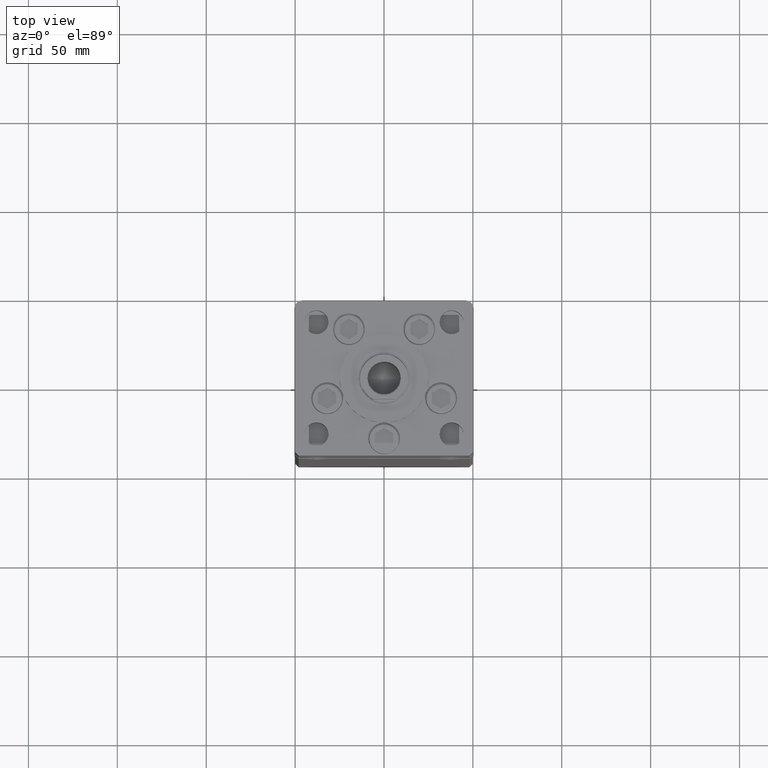
[diagram: clean part render]
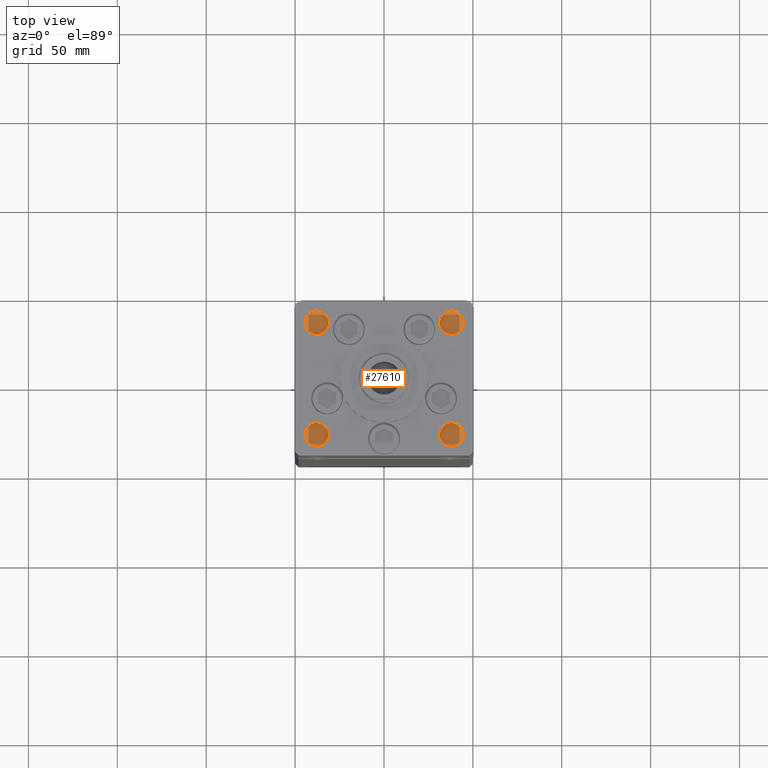
[diagram: same view with one face highlighted and labeled with its STEP entity id]
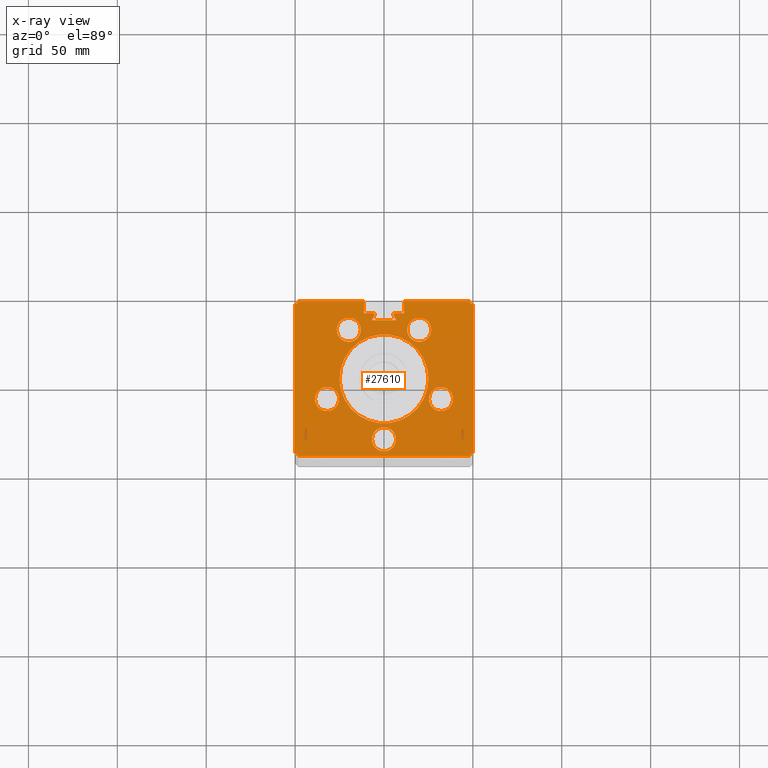
[diagram: x-ray of the same camera — body ghosted, the highlighted face saturated]
A machine part, top view. The second image highlights one B-rep face of the part: STEP entity #27610.
The next image is the same camera in x-ray: the body ghosted, the highlighted face saturated — about 0% of this face is hidden behind the body in this view.
In plain terms, the highlighted planar face has unit normal (0, 0, -1).
Its self-contained STEP definition (entity closure, byte-faithful):
#249 = FACE_BOUND ( 'NONE', #30417, .T. ) ;
#274 = CARTESIAN_POINT ( 'NONE',  ( 49.99999999999998579, -41.49999999999999289, 338.5000000000000000 ) ) ;
#301 = EDGE_CURVE ( 'NONE', #16092, #37693, #9199, .T. ) ;
#686 = VERTEX_POINT ( 'NONE', #38133 ) ;
#774 = DIRECTION ( 'NONE',  ( 0.000000000000000000, 0.000000000000000000, -1.000000000000000000 ) ) ;
#806 = EDGE_CURVE ( 'NONE', #14934, #25585, #36472, .T. ) ;
#831 = DIRECTION ( 'NONE',  ( -0.7071067811865487940, -0.7071067811865463515, 0.000000000000000000 ) ) ;
#842 = CARTESIAN_POINT ( 'NONE',  ( -19.44653440471351402, 11.22746187336663226, 338.5000000000000000 ) ) ;
#1046 = CARTESIAN_POINT ( 'NONE',  ( 0.000000000000000000, 0.000000000000000000, 338.5000000000000000 ) ) ;
#1163 = VERTEX_POINT ( 'NONE', #13509 ) ;
#1441 = ORIENTED_EDGE ( 'NONE', *, *, #301, .T. ) ;
#1903 = AXIS2_PLACEMENT_3D ( 'NONE', #31553, #44477, #7609 ) ;
#1906 = CIRCLE ( 'NONE', #14779, 0.9333333333339999260 ) ;
#1945 = CARTESIAN_POINT ( 'NONE',  ( 26.57068048781373903, 27.62500000000000000, 338.5000000000000000 ) ) ;
#2425 = VERTEX_POINT ( 'NONE', #37145 ) ;
#2578 = CARTESIAN_POINT ( 'NONE',  ( -32.05550741379015278, -11.33333333333334458, 338.5000000000000000 ) ) ;
#2744 = DIRECTION ( 'NONE',  ( 1.000000000000000000, 0.000000000000000000, 0.000000000000000000 ) ) ;
#3244 = EDGE_CURVE ( 'NONE', #45665, #2425, #27998, .T. ) ;
#3258 = VECTOR ( 'NONE', #48334, 1000.000000000000114 ) ;
#3396 = CARTESIAN_POINT ( 'NONE',  ( 0.000000000000000000, 0.000000000000000000, 338.5000000000000000 ) ) ;
#3453 = AXIS2_PLACEMENT_3D ( 'NONE', #10288, #26696, #19443 ) ;
#3525 = DIRECTION ( 'NONE',  ( 3.344045254895050973E-16, -1.000000000000000000, 0.000000000000000000 ) ) ;
#3640 = CIRCLE ( 'NONE', #1903, 6.749999999999999112 ) ;
#3907 = CARTESIAN_POINT ( 'NONE',  ( 11.24999999999999645, 37.00000000000000000, 338.5000000000000000 ) ) ;
#4026 = EDGE_LOOP ( 'NONE', ( #48817, #43955 ) ) ;
#4202 = CARTESIAN_POINT ( 'NONE',  ( 25.00000000000000000, 3.061616997868383043E-15, 338.5000000000000000 ) ) ;
#4565 = FACE_BOUND ( 'NONE', #4026, .T. ) ;
#4828 = PLANE ( 'NONE',  #19080 ) ;
#4993 = EDGE_LOOP ( 'NONE', ( #53265, #18719 ) ) ;
#5135 = VERTEX_POINT ( 'NONE', #17079 ) ;
#5151 = LINE ( 'NONE', #8660, #5290 ) ;
#5290 = VECTOR ( 'NONE', #33672, 1000.000000000000000 ) ;
#5382 = CARTESIAN_POINT ( 'NONE',  ( -11.24999999999999645, 0.000000000000000000, 338.5000000000000000 ) ) ;
#5396 = VERTEX_POINT ( 'NONE', #44747 ) ;
#5457 = VERTEX_POINT ( 'NONE', #49833 ) ;
#5572 = CARTESIAN_POINT ( 'NONE',  ( 6.876153656360465050, 32.99999999999986500, 338.5000000000000000 ) ) ;
#6509 = CARTESIAN_POINT ( 'NONE',  ( 25.30550741379015278, -11.33333333333334103, 338.5000000000000000 ) ) ;
#6865 = VECTOR ( 'NONE', #831, 1000.000000000000000 ) ;
#7071 = ORIENTED_EDGE ( 'NONE', *, *, #12977, .F. ) ;
#7177 = CARTESIAN_POINT ( 'NONE',  ( -11.24999999999999645, 37.00000000000000000, 338.5000000000000000 ) ) ;
#7448 = VERTEX_POINT ( 'NONE', #48994 ) ;
#7480 = EDGE_CURVE ( 'NONE', #7448, #25585, #8353, .T. ) ;
#7609 = DIRECTION ( 'NONE',  ( 1.000000000000000000, 0.000000000000000000, 0.000000000000000000 ) ) ;
#7973 = CARTESIAN_POINT ( 'NONE',  ( -50.00000000000001421, 41.49999999999999289, 338.5000000000000000 ) ) ;
#8353 = LINE ( 'NONE', #274, #20446 ) ;
#8447 = AXIS2_PLACEMENT_3D ( 'NONE', #32163, #39724, #19535 ) ;
#8635 = CIRCLE ( 'NONE', #38708, 25.00000000000000000 ) ;
#8660 = CARTESIAN_POINT ( 'NONE',  ( -11.24999999999999645, 43.50000000000000000, 338.5000000000000000 ) ) ;
#8724 = EDGE_CURVE ( 'NONE', #26478, #46243, #46250, .T. ) ;
#9198 = CARTESIAN_POINT ( 'NONE',  ( 32.05550741379015278, -11.33333333333334103, 338.5000000000000000 ) ) ;
#9199 = LINE ( 'NONE', #842, #30992 ) ;
#9242 = ORIENTED_EDGE ( 'NONE', *, *, #43493, .T. ) ;
#9331 = EDGE_CURVE ( 'NONE', #20983, #14459, #27331, .T. ) ;
#9375 = EDGE_CURVE ( 'NONE', #5396, #29085, #38523, .T. ) ;
#9472 = CARTESIAN_POINT ( 'NONE',  ( 19.82068048781374259, 27.62500000000000000, 338.5000000000000000 ) ) ;
#10199 = CARTESIAN_POINT ( 'NONE',  ( 50.00000000000001421, 41.49999999999999289, 338.5000000000000000 ) ) ;
#10202 = ORIENTED_EDGE ( 'NONE', *, *, #19631, .F. ) ;
#10254 = ORIENTED_EDGE ( 'NONE', *, *, #51500, .F. ) ;
#10282 = LINE ( 'NONE', #42863, #44751 ) ;
#10288 = CARTESIAN_POINT ( 'NONE',  ( -19.82068048781374259, 27.62499999999999645, 338.5000000000000000 ) ) ;
#10659 = DIRECTION ( 'NONE',  ( 1.000000000000000000, 0.000000000000000000, 0.000000000000000000 ) ) ;
#10762 = ORIENTED_EDGE ( 'NONE', *, *, #18156, .T. ) ;
#11081 = CARTESIAN_POINT ( 'NONE',  ( -6.183333333333996151, 36.06666666666599497, 338.5000000000000000 ) ) ;
#11401 = CIRCLE ( 'NONE', #31112, 6.749999999999999112 ) ;
#11522 = ORIENTED_EDGE ( 'NONE', *, *, #9375, .F. ) ;
#12176 = DIRECTION ( 'NONE',  ( 1.000000000000000000, 0.000000000000000000, 0.000000000000000000 ) ) ;
#12192 = DIRECTION ( 'NONE',  ( 0.000000000000000000, 0.000000000000000000, 1.000000000000000000 ) ) ;
#12263 = EDGE_CURVE ( 'NONE', #2425, #14934, #15229, .T. ) ;
#12281 = CARTESIAN_POINT ( 'NONE',  ( -11.24999999999999645, 43.50000000000000000, 338.5000000000000000 ) ) ;
#12782 = CARTESIAN_POINT ( 'NONE',  ( 2.081899558550500280E-15, -34.00000000000000000, 338.5000000000000000 ) ) ;
#12923 = DIRECTION ( 'NONE',  ( 0.000000000000000000, 1.000000000000000000, 0.000000000000000000 ) ) ;
#12977 = EDGE_CURVE ( 'NONE', #5135, #7448, #37677, .T. ) ;
#13348 = EDGE_CURVE ( 'NONE', #15019, #16225, #26480, .T. ) ;
#13509 = CARTESIAN_POINT ( 'NONE',  ( -5.249999999999995559, 36.06666666666599497, 338.5000000000000000 ) ) ;
#13547 = VERTEX_POINT ( 'NONE', #34895 ) ;
#13625 = ORIENTED_EDGE ( 'NONE', *, *, #27314, .F. ) ;
#13820 = ORIENTED_EDGE ( 'NONE', *, *, #12263, .T. ) ;
#14043 = DIRECTION ( 'NONE',  ( 1.000000000000000000, 0.000000000000000000, 0.000000000000000000 ) ) ;
#14459 = VERTEX_POINT ( 'NONE', #4202 ) ;
#14734 = CARTESIAN_POINT ( 'NONE',  ( 38.80550741379015278, -11.33333333333334103, 338.5000000000000000 ) ) ;
#14779 = AXIS2_PLACEMENT_3D ( 'NONE', #27697, #44133, #27963 ) ;
#14934 = VERTEX_POINT ( 'NONE', #38431 ) ;
#15019 = VERTEX_POINT ( 'NONE', #31130 ) ;
#15121 = DIRECTION ( 'NONE',  ( 0.000000000000000000, 0.000000000000000000, -1.000000000000000000 ) ) ;
#15229 = LINE ( 'NONE', #23839, #3258 ) ;
#15329 = AXIS2_PLACEMENT_3D ( 'NONE', #12782, #32961, #16288 ) ;
#15361 = DIRECTION ( 'NONE',  ( 0.000000000000000000, 0.000000000000000000, 1.000000000000000000 ) ) ;
#15598 = EDGE_CURVE ( 'NONE', #13547, #33071, #23208, .T. ) ;
#15794 = DIRECTION ( 'NONE',  ( 1.000000000000000000, 0.000000000000000000, 0.000000000000000000 ) ) ;
#16092 = VERTEX_POINT ( 'NONE', #52911 ) ;
#16225 = VERTEX_POINT ( 'NONE', #42663 ) ;
#16288 = DIRECTION ( 'NONE',  ( 1.000000000000000000, 0.000000000000000000, 0.000000000000000000 ) ) ;
#16481 = EDGE_CURVE ( 'NONE', #32214, #5135, #43055, .T. ) ;
#16610 = ORIENTED_EDGE ( 'NONE', *, *, #40503, .F. ) ;
#16710 = DIRECTION ( 'NONE',  ( -0.7071067811865474617, -0.7071067811865474617, 0.000000000000000000 ) ) ;
#16943 = FACE_BOUND ( 'NONE', #37708, .T. ) ;
#17079 = CARTESIAN_POINT ( 'NONE',  ( 50.00000000000001421, 41.49999999999999289, 338.5000000000000000 ) ) ;
#17559 = DIRECTION ( 'NONE',  ( 0.000000000000000000, 0.000000000000000000, 1.000000000000000000 ) ) ;
#18014 = VECTOR ( 'NONE', #36009, 999.9999999999998863 ) ;
#18066 = DIRECTION ( 'NONE',  ( 0.4999999999999988898, 0.8660254037844393737, 0.000000000000000000 ) ) ;
#18156 = EDGE_CURVE ( 'NONE', #5457, #45665, #49556, .T. ) ;
#18368 = CARTESIAN_POINT ( 'NONE',  ( -38.80550741379015278, -11.33333333333334458, 338.5000000000000000 ) ) ;
#18480 = DIRECTION ( 'NONE',  ( 1.000000000000000000, 0.000000000000000000, 0.000000000000000000 ) ) ;
#18569 = CARTESIAN_POINT ( 'NONE',  ( 19.82068048781374259, 27.62500000000000000, 338.5000000000000000 ) ) ;
#18719 = ORIENTED_EDGE ( 'NONE', *, *, #29618, .F. ) ;
#18741 = DIRECTION ( 'NONE',  ( 0.000000000000000000, 0.000000000000000000, -1.000000000000000000 ) ) ;
#19080 = AXIS2_PLACEMENT_3D ( 'NONE', #1046, #774, #38197 ) ;
#19443 = DIRECTION ( 'NONE',  ( 1.000000000000000000, 0.000000000000000000, 0.000000000000000000 ) ) ;
#19459 = LINE ( 'NONE', #47713, #47511 ) ;
#19535 = DIRECTION ( 'NONE',  ( 1.000000000000000000, 0.000000000000000000, 0.000000000000000000 ) ) ;
#19631 = EDGE_CURVE ( 'NONE', #14459, #20983, #8635, .T. ) ;
#19642 = CARTESIAN_POINT ( 'NONE',  ( -26.57068048781373903, 27.62499999999999645, 338.5000000000000000 ) ) ;
#19669 = DIRECTION ( 'NONE',  ( 1.000000000000000000, 0.000000000000000000, 0.000000000000000000 ) ) ;
#19679 = CARTESIAN_POINT ( 'NONE',  ( -50.00000000000001421, 41.49999999999999289, 338.5000000000000000 ) ) ;
#19746 = VECTOR ( 'NONE', #39102, 1000.000000000000000 ) ;
#20025 = AXIS2_PLACEMENT_3D ( 'NONE', #9198, #20524, #12176 ) ;
#20446 = VECTOR ( 'NONE', #16710, 1000.000000000000114 ) ;
#20505 = VERTEX_POINT ( 'NONE', #12281 ) ;
#20506 = ORIENTED_EDGE ( 'NONE', *, *, #9331, .F. ) ;
#20524 = DIRECTION ( 'NONE',  ( 0.000000000000000000, 0.000000000000000000, 1.000000000000000000 ) ) ;
#20950 = EDGE_CURVE ( 'NONE', #26121, #16092, #10282, .T. ) ;
#20983 = VERTEX_POINT ( 'NONE', #30982 ) ;
#21582 = VECTOR ( 'NONE', #32953, 1000.000000000000000 ) ;
#21630 = ORIENTED_EDGE ( 'NONE', *, *, #53009, .F. ) ;
#22394 = ORIENTED_EDGE ( 'NONE', *, *, #46138, .F. ) ;
#22460 = ORIENTED_EDGE ( 'NONE', *, *, #25579, .F. ) ;
#22573 = VECTOR ( 'NONE', #18480, 1000.000000000000000 ) ;
#22924 = DIRECTION ( 'NONE',  ( -0.000000000000000000, -1.000000000000000000, 0.000000000000000000 ) ) ;
#23208 = LINE ( 'NONE', #31535, #19746 ) ;
#23441 = CARTESIAN_POINT ( 'NONE',  ( -32.05550741379015278, -11.33333333333334458, 338.5000000000000000 ) ) ;
#23598 = DIRECTION ( 'NONE',  ( -0.000000000000000000, 0.000000000000000000, 1.000000000000000000 ) ) ;
#23650 = LINE ( 'NONE', #43557, #18014 ) ;
#23839 = CARTESIAN_POINT ( 'NONE',  ( -49.99999999999998579, -41.49999999999999289, 338.5000000000000000 ) ) ;
#24161 = VERTEX_POINT ( 'NONE', #3907 ) ;
#24369 = CARTESIAN_POINT ( 'NONE',  ( -47.99999999999998579, -43.50000000000000000, 338.5000000000000000 ) ) ;
#24527 = EDGE_CURVE ( 'NONE', #50818, #25729, #3640, .T. ) ;
#24752 = CARTESIAN_POINT ( 'NONE',  ( 32.05550741379015278, -11.33333333333334103, 338.5000000000000000 ) ) ;
#25579 = EDGE_CURVE ( 'NONE', #686, #33475, #50092, .T. ) ;
#25585 = VERTEX_POINT ( 'NONE', #36070 ) ;
#25729 = VERTEX_POINT ( 'NONE', #37940 ) ;
#25749 = LINE ( 'NONE', #35883, #22573 ) ;
#26121 = VERTEX_POINT ( 'NONE', #5572 ) ;
#26216 = EDGE_CURVE ( 'NONE', #5457, #20505, #25749, .T. ) ;
#26478 = VERTEX_POINT ( 'NONE', #14734 ) ;
#26480 = CIRCLE ( 'NONE', #41991, 0.9333333333339999260 ) ;
#26603 = DIRECTION ( 'NONE',  ( -3.344045254895050973E-16, -1.000000000000000000, 0.000000000000000000 ) ) ;
#26696 = DIRECTION ( 'NONE',  ( 0.000000000000000000, 0.000000000000000000, 1.000000000000000000 ) ) ;
#27064 = DIRECTION ( 'NONE',  ( 0.000000000000000000, 0.000000000000000000, 1.000000000000000000 ) ) ;
#27314 = EDGE_CURVE ( 'NONE', #49259, #32214, #5151, .T. ) ;
#27331 = CIRCLE ( 'NONE', #8447, 25.00000000000000000 ) ;
#27535 = CIRCLE ( 'NONE', #48175, 6.749999999999999112 ) ;
#27610 = ADVANCED_FACE ( 'NONE', ( #16943, #50303, #249, #37659, #4565, #41705, #34131 ), #4828, .F. ) ;
#27697 = CARTESIAN_POINT ( 'NONE',  ( -6.183333333333996151, 36.06666666666599497, 338.5000000000000000 ) ) ;
#27963 = DIRECTION ( 'NONE',  ( 1.000000000000000000, 0.000000000000000000, 0.000000000000000000 ) ) ;
#27996 = CARTESIAN_POINT ( 'NONE',  ( -5.375042956467944499, 35.59999999999899245, 338.5000000000000000 ) ) ;
#27998 = LINE ( 'NONE', #19679, #50837 ) ;
#28591 = DIRECTION ( 'NONE',  ( 1.000000000000000000, 0.000000000000000000, 0.000000000000000000 ) ) ;
#29085 = VERTEX_POINT ( 'NONE', #46774 ) ;
#29291 = CARTESIAN_POINT ( 'NONE',  ( 13.07068048781374081, 27.62500000000000000, 338.5000000000000000 ) ) ;
#29307 = ORIENTED_EDGE ( 'NONE', *, *, #20950, .T. ) ;
#29444 = AXIS2_PLACEMENT_3D ( 'NONE', #23441, #15361, #19669 ) ;
#29618 = EDGE_CURVE ( 'NONE', #47499, #45982, #11401, .T. ) ;
#29890 = CARTESIAN_POINT ( 'NONE',  ( -48.00000000000000711, 43.50000000000000000, 338.5000000000000000 ) ) ;
#30003 = ORIENTED_EDGE ( 'NONE', *, *, #13348, .F. ) ;
#30031 = AXIS2_PLACEMENT_3D ( 'NONE', #36674, #12192, #28591 ) ;
#30402 = DIRECTION ( 'NONE',  ( 0.000000000000000000, 0.000000000000000000, 1.000000000000000000 ) ) ;
#30417 = EDGE_LOOP ( 'NONE', ( #49921, #21630 ) ) ;
#30808 = ORIENTED_EDGE ( 'NONE', *, *, #15598, .T. ) ;
#30982 = CARTESIAN_POINT ( 'NONE',  ( -25.00000000000000000, 0.000000000000000000, 338.5000000000000000 ) ) ;
#30992 = VECTOR ( 'NONE', #18066, 999.9999999999998863 ) ;
#31112 = AXIS2_PLACEMENT_3D ( 'NONE', #18569, #30402, #34716 ) ;
#31130 = CARTESIAN_POINT ( 'NONE',  ( 5.375042956467944499, 35.59999999999899245, 338.5000000000000000 ) ) ;
#31535 = CARTESIAN_POINT ( 'NONE',  ( 0.000000000000000000, 37.00000000000000000, 338.5000000000000000 ) ) ;
#31553 = CARTESIAN_POINT ( 'NONE',  ( -19.82068048781374259, 27.62499999999999645, 338.5000000000000000 ) ) ;
#31675 = VECTOR ( 'NONE', #26603, 1000.000000000000000 ) ;
#31946 = ORIENTED_EDGE ( 'NONE', *, *, #26216, .F. ) ;
#32149 = ORIENTED_EDGE ( 'NONE', *, *, #16481, .F. ) ;
#32163 = CARTESIAN_POINT ( 'NONE',  ( 0.000000000000000000, 0.000000000000000000, 338.5000000000000000 ) ) ;
#32214 = VERTEX_POINT ( 'NONE', #39138 ) ;
#32671 = AXIS2_PLACEMENT_3D ( 'NONE', #11081, #15121, #2744 ) ;
#32821 = DIRECTION ( 'NONE',  ( 1.000000000000000000, 0.000000000000000000, 0.000000000000000000 ) ) ;
#32953 = DIRECTION ( 'NONE',  ( 1.000000000000000000, 0.000000000000000000, 0.000000000000000000 ) ) ;
#32961 = DIRECTION ( 'NONE',  ( 0.000000000000000000, 0.000000000000000000, 1.000000000000000000 ) ) ;
#33014 = EDGE_LOOP ( 'NONE', ( #16610, #11522 ) ) ;
#33071 = VERTEX_POINT ( 'NONE', #7177 ) ;
#33317 = ORIENTED_EDGE ( 'NONE', *, *, #40103, .F. ) ;
#33475 = VERTEX_POINT ( 'NONE', #18368 ) ;
#33672 = DIRECTION ( 'NONE',  ( 1.000000000000000000, 0.000000000000000000, 0.000000000000000000 ) ) ;
#34131 = FACE_BOUND ( 'NONE', #36642, .T. ) ;
#34563 = ORIENTED_EDGE ( 'NONE', *, *, #806, .T. ) ;
#34716 = DIRECTION ( 'NONE',  ( 1.000000000000000000, 0.000000000000000000, 0.000000000000000000 ) ) ;
#34895 = CARTESIAN_POINT ( 'NONE',  ( -6.183333333333996151, 37.00000000000000000, 338.5000000000000000 ) ) ;
#35862 = EDGE_LOOP ( 'NONE', ( #30808, #47793, #31946, #10762, #50277, #13820, #34563, #46075, #7071, #32149, #13625, #40219, #48438, #30003, #9242, #29307, #1441, #10254, #22394 ) ) ;
#35883 = CARTESIAN_POINT ( 'NONE',  ( -11.24999999999999645, 43.50000000000000000, 338.5000000000000000 ) ) ;
#36009 = DIRECTION ( 'NONE',  ( 0.4999999999999988898, -0.8660254037844393737, 0.000000000000000000 ) ) ;
#36064 = CIRCLE ( 'NONE', #42953, 6.749999999999999112 ) ;
#36070 = CARTESIAN_POINT ( 'NONE',  ( 47.99999999999998579, -43.50000000000000000, 338.5000000000000000 ) ) ;
#36472 = LINE ( 'NONE', #24369, #21582 ) ;
#36642 = EDGE_LOOP ( 'NONE', ( #20506, #10202 ) ) ;
#36674 = CARTESIAN_POINT ( 'NONE',  ( 2.081899558550500280E-15, -34.00000000000000000, 338.5000000000000000 ) ) ;
#37145 = CARTESIAN_POINT ( 'NONE',  ( -49.99999999999998579, -41.49999999999999289, 338.5000000000000000 ) ) ;
#37659 = FACE_BOUND ( 'NONE', #4993, .T. ) ;
#37677 = LINE ( 'NONE', #10199, #31675 ) ;
#37693 = VERTEX_POINT ( 'NONE', #27996 ) ;
#37708 = EDGE_LOOP ( 'NONE', ( #22460, #33317 ) ) ;
#37808 = EDGE_CURVE ( 'NONE', #33071, #20505, #50063, .T. ) ;
#37840 = VECTOR ( 'NONE', #22924, 1000.000000000000000 ) ;
#37940 = CARTESIAN_POINT ( 'NONE',  ( -13.07068048781374259, 27.62499999999999645, 338.5000000000000000 ) ) ;
#38133 = CARTESIAN_POINT ( 'NONE',  ( -25.30550741379015278, -11.33333333333334458, 338.5000000000000000 ) ) ;
#38191 = DIRECTION ( 'NONE',  ( 0.000000000000000000, 0.000000000000000000, 1.000000000000000000 ) ) ;
#38197 = DIRECTION ( 'NONE',  ( -1.000000000000000000, 0.000000000000000000, -0.000000000000000000 ) ) ;
#38431 = CARTESIAN_POINT ( 'NONE',  ( -47.99999999999998579, -43.50000000000000000, 338.5000000000000000 ) ) ;
#38523 = CIRCLE ( 'NONE', #15329, 6.749999999999999112 ) ;
#38708 = AXIS2_PLACEMENT_3D ( 'NONE', #3396, #23598, #15794 ) ;
#39102 = DIRECTION ( 'NONE',  ( -1.000000000000000000, 0.000000000000000000, 0.000000000000000000 ) ) ;
#39138 = CARTESIAN_POINT ( 'NONE',  ( 48.00000000000000711, 43.50000000000000000, 338.5000000000000000 ) ) ;
#39641 = DIRECTION ( 'NONE',  ( -1.000000000000000000, 0.000000000000000000, 0.000000000000000000 ) ) ;
#39724 = DIRECTION ( 'NONE',  ( -0.000000000000000000, 0.000000000000000000, 1.000000000000000000 ) ) ;
#39732 = DIRECTION ( 'NONE',  ( 1.000000000000000000, 0.000000000000000000, 0.000000000000000000 ) ) ;
#39764 = CIRCLE ( 'NONE', #20025, 6.749999999999999112 ) ;
#39822 = CARTESIAN_POINT ( 'NONE',  ( 48.00000000000000711, 43.50000000000000000, 338.5000000000000000 ) ) ;
#39884 = LINE ( 'NONE', #44189, #37840 ) ;
#40103 = EDGE_CURVE ( 'NONE', #33475, #686, #36064, .T. ) ;
#40219 = ORIENTED_EDGE ( 'NONE', *, *, #46249, .T. ) ;
#40503 = EDGE_CURVE ( 'NONE', #29085, #5396, #42070, .T. ) ;
#41112 = AXIS2_PLACEMENT_3D ( 'NONE', #24752, #38191, #32821 ) ;
#41705 = FACE_OUTER_BOUND ( 'NONE', #35862, .T. ) ;
#41991 = AXIS2_PLACEMENT_3D ( 'NONE', #50262, #18741, #39732 ) ;
#42070 = CIRCLE ( 'NONE', #30031, 6.749999999999999112 ) ;
#42147 = CIRCLE ( 'NONE', #3453, 6.749999999999999112 ) ;
#42663 = CARTESIAN_POINT ( 'NONE',  ( 6.183333333333996151, 37.00000000000000000, 338.5000000000000000 ) ) ;
#42863 = CARTESIAN_POINT ( 'NONE',  ( 0.000000000000000000, 32.99999999999986500, 338.5000000000000000 ) ) ;
#42953 = AXIS2_PLACEMENT_3D ( 'NONE', #2578, #27064, #10659 ) ;
#43055 = LINE ( 'NONE', #39822, #52385 ) ;
#43194 = EDGE_CURVE ( 'NONE', #45982, #47499, #27535, .T. ) ;
#43493 = EDGE_CURVE ( 'NONE', #15019, #26121, #23650, .T. ) ;
#43557 = CARTESIAN_POINT ( 'NONE',  ( 19.44653440471351402, 11.22746187336663226, 338.5000000000000000 ) ) ;
#43652 = DIRECTION ( 'NONE',  ( -1.000000000000000000, 0.000000000000000000, 0.000000000000000000 ) ) ;
#43955 = ORIENTED_EDGE ( 'NONE', *, *, #24527, .F. ) ;
#44133 = DIRECTION ( 'NONE',  ( 0.000000000000000000, 0.000000000000000000, -1.000000000000000000 ) ) ;
#44189 = CARTESIAN_POINT ( 'NONE',  ( 11.24999999999999645, 0.000000000000000000, 338.5000000000000000 ) ) ;
#44287 = VECTOR ( 'NONE', #12923, 1000.000000000000000 ) ;
#44477 = DIRECTION ( 'NONE',  ( 0.000000000000000000, 0.000000000000000000, 1.000000000000000000 ) ) ;
#44747 = CARTESIAN_POINT ( 'NONE',  ( -6.749999999999997335, -34.00000000000000000, 338.5000000000000000 ) ) ;
#44751 = VECTOR ( 'NONE', #43652, 1000.000000000000000 ) ;
#45665 = VERTEX_POINT ( 'NONE', #7973 ) ;
#45982 = VERTEX_POINT ( 'NONE', #1945 ) ;
#46075 = ORIENTED_EDGE ( 'NONE', *, *, #7480, .F. ) ;
#46138 = EDGE_CURVE ( 'NONE', #13547, #1163, #50738, .T. ) ;
#46243 = VERTEX_POINT ( 'NONE', #6509 ) ;
#46249 = EDGE_CURVE ( 'NONE', #49259, #24161, #39884, .T. ) ;
#46250 = CIRCLE ( 'NONE', #41112, 6.749999999999999112 ) ;
#46685 = CARTESIAN_POINT ( 'NONE',  ( 11.24999999999998934, 43.50000000000000000, 338.5000000000000000 ) ) ;
#46774 = CARTESIAN_POINT ( 'NONE',  ( 6.750000000000000888, -34.00000000000000000, 338.5000000000000000 ) ) ;
#46981 = EDGE_CURVE ( 'NONE', #25729, #50818, #42147, .T. ) ;
#47072 = DIRECTION ( 'NONE',  ( 0.7071067811865487940, -0.7071067811865463515, 0.000000000000000000 ) ) ;
#47499 = VERTEX_POINT ( 'NONE', #29291 ) ;
#47511 = VECTOR ( 'NONE', #39641, 1000.000000000000000 ) ;
#47713 = CARTESIAN_POINT ( 'NONE',  ( 0.000000000000000000, 37.00000000000000000, 338.5000000000000000 ) ) ;
#47793 = ORIENTED_EDGE ( 'NONE', *, *, #37808, .T. ) ;
#48175 = AXIS2_PLACEMENT_3D ( 'NONE', #9472, #17559, #14043 ) ;
#48334 = DIRECTION ( 'NONE',  ( 0.7071067811865474617, -0.7071067811865474617, 0.000000000000000000 ) ) ;
#48438 = ORIENTED_EDGE ( 'NONE', *, *, #52842, .T. ) ;
#48817 = ORIENTED_EDGE ( 'NONE', *, *, #46981, .F. ) ;
#48994 = CARTESIAN_POINT ( 'NONE',  ( 49.99999999999998579, -41.49999999999999289, 338.5000000000000000 ) ) ;
#49259 = VERTEX_POINT ( 'NONE', #46685 ) ;
#49556 = LINE ( 'NONE', #29890, #6865 ) ;
#49833 = CARTESIAN_POINT ( 'NONE',  ( -48.00000000000000711, 43.50000000000000000, 338.5000000000000000 ) ) ;
#49921 = ORIENTED_EDGE ( 'NONE', *, *, #8724, .F. ) ;
#50063 = LINE ( 'NONE', #5382, #44287 ) ;
#50092 = CIRCLE ( 'NONE', #29444, 6.749999999999999112 ) ;
#50262 = CARTESIAN_POINT ( 'NONE',  ( 6.183333333333996151, 36.06666666666599497, 338.5000000000000000 ) ) ;
#50277 = ORIENTED_EDGE ( 'NONE', *, *, #3244, .T. ) ;
#50303 = FACE_BOUND ( 'NONE', #33014, .T. ) ;
#50738 = CIRCLE ( 'NONE', #32671, 0.9333333333339999260 ) ;
#50818 = VERTEX_POINT ( 'NONE', #19642 ) ;
#50837 = VECTOR ( 'NONE', #3525, 1000.000000000000000 ) ;
#51500 = EDGE_CURVE ( 'NONE', #1163, #37693, #1906, .T. ) ;
#52385 = VECTOR ( 'NONE', #47072, 1000.000000000000000 ) ;
#52842 = EDGE_CURVE ( 'NONE', #24161, #16225, #19459, .T. ) ;
#52911 = CARTESIAN_POINT ( 'NONE',  ( -6.876153656360465050, 32.99999999999986500, 338.5000000000000000 ) ) ;
#53009 = EDGE_CURVE ( 'NONE', #46243, #26478, #39764, .T. ) ;
#53265 = ORIENTED_EDGE ( 'NONE', *, *, #43194, .F. ) ;